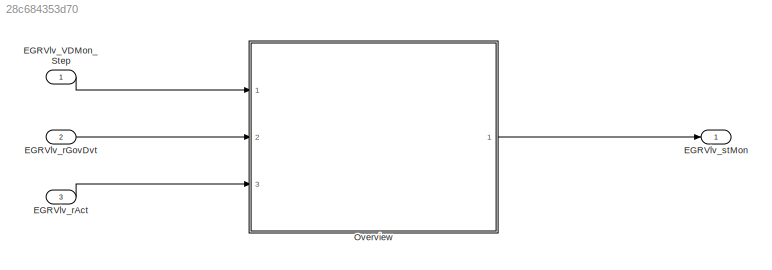
MODEL slx_28c684353d70
KIND model
CONFIG AbsTol = auto
CONFIG EnableMultiTasking = off
CONFIG FixedStep = 0.001
CONFIG MaxStep = auto
CONFIG MinStep = auto
CONFIG RelTol = 1e-3
CONFIG SampleTimeConstraint = Unconstrained
CONFIG SolverName = FixedStepDiscrete
CONFIG StartTime = 0.0
CONFIG StopTime = Inf
WORKSPACE source: mxarray member
WORKSPACE EGRVlv_VDMon_DT = 10
BLOCK [Inport] EGRVlv_VDMon_Step
  OutputFunctionCall = on
BLOCK [Inport] EGRVlv_rAct
  Description = Actuatorposition
  OutDataTypeStr = DutyCycle
  OutMax = 100
  OutMin = -100
  Port = 3
  PortDimensions = [1 1]
  Unit = %
BLOCK [Inport] EGRVlv_rGovDvt
  Description = Control deviation
  OutDataTypeStr = DutyCycle
  OutMax = 100
  OutMin = -100
  Port = 2
  PortDimensions = [1 1]
  Unit = %
BLOCK [Outport] EGRVlv_stMon
  Description = State of system monitoring
  OutDataTypeStr = State2
  OutMax = 65535
  OutMin = 0
  PortDimensions = [1 1]
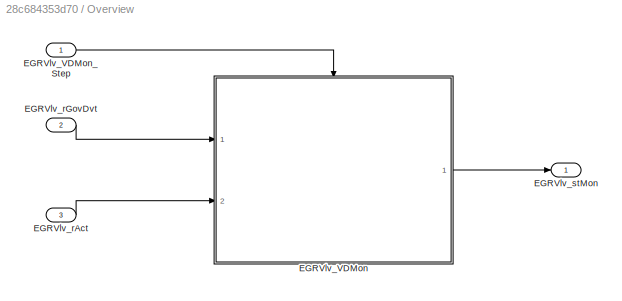
BLOCK [SubSystem] Overview
  Ports = [3, 1]
  RequestExecContextInheritance = off
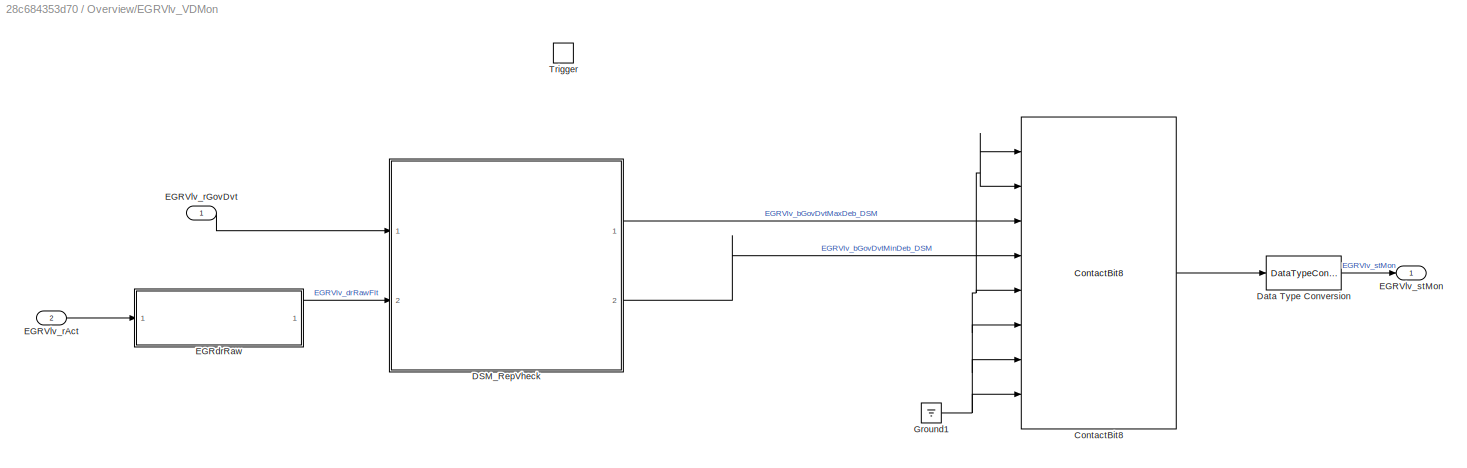
BLOCK [SubSystem] Overview/EGRVlv_VDMon
  Ports = [2, 1, 0, 1]
  RequestExecContextInheritance = off
BLOCK [Reference] Overview/EGRVlv_VDMon/ContactBit8  REF=sllib/Bit Operation/ContactBit8  (lib defined in slx_2b0aa6d284ff)
  Ports = [8, 1]
  SourceBlock = sllib/Bit Operation/ContactBit8
  SourceProductName = sllib
  SourceType = ContactBit8
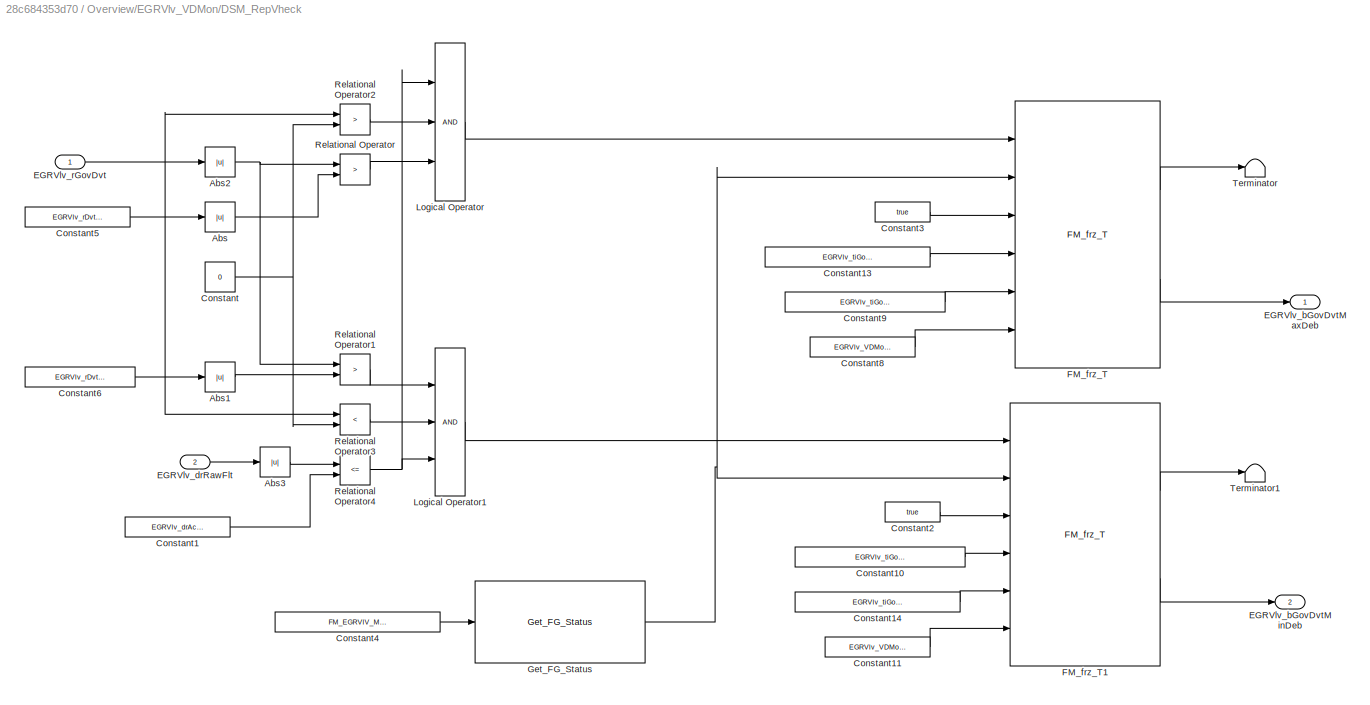
BLOCK [SubSystem] Overview/EGRVlv_VDMon/DSM_RepVheck
  Ports = [2, 2]
  RequestExecContextInheritance = off
BLOCK [Abs] Overview/EGRVlv_VDMon/DSM_RepVheck/Abs
  SaturateOnIntegerOverflow = off
BLOCK [Abs] Overview/EGRVlv_VDMon/DSM_RepVheck/Abs1
  SaturateOnIntegerOverflow = off
BLOCK [Abs] Overview/EGRVlv_VDMon/DSM_RepVheck/Abs2
  SaturateOnIntegerOverflow = off
BLOCK [Abs] Overview/EGRVlv_VDMon/DSM_RepVheck/Abs3
  SaturateOnIntegerOverflow = off
BLOCK [Constant] Overview/EGRVlv_VDMon/DSM_RepVheck/Constant
  OutDataTypeStr = Inherit: Inherit via back propagation
  Value = 0
BLOCK [Constant] Overview/EGRVlv_VDMon/DSM_RepVheck/Constant1
  SampleTime = -1
  Value = EGRVlv_drActDvt_C
BLOCK [Constant] Overview/EGRVlv_VDMon/DSM_RepVheck/Constant10
  Value = EGRVlv_tiGovDvtMinDebDef_C
BLOCK [Constant] Overview/EGRVlv_VDMon/DSM_RepVheck/Constant11
  OutDataTypeStr = Inherit: Inherit via back propagation
  Value = EGRVlv_VDMon_DT
BLOCK [Constant] Overview/EGRVlv_VDMon/DSM_RepVheck/Constant13
  Value = EGRVlv_tiGovDvtMaxDebDef_C
BLOCK [Constant] Overview/EGRVlv_VDMon/DSM_RepVheck/Constant14
  Value = EGRVlv_tiGovDvtMinDebOk_C
BLOCK [Constant] Overview/EGRVlv_VDMon/DSM_RepVheck/Constant2
  OutDataTypeStr = boolean
  Value = true
BLOCK [Constant] Overview/EGRVlv_VDMon/DSM_RepVheck/Constant3
  OutDataTypeStr = boolean
  Value = true
BLOCK [Constant] Overview/EGRVlv_VDMon/DSM_RepVheck/Constant4
  Value = FM_EGRVlV_MonEn_FG_CA
BLOCK [Constant] Overview/EGRVlv_VDMon/DSM_RepVheck/Constant5
  SampleTime = -1
  Value = EGRVlv_rDvtMax_C
BLOCK [Constant] Overview/EGRVlv_VDMon/DSM_RepVheck/Constant6
  SampleTime = -1
  Value = EGRVlv_rDvtMin_C
BLOCK [Constant] Overview/EGRVlv_VDMon/DSM_RepVheck/Constant8
  OutDataTypeStr = Inherit: Inherit via back propagation
  Value = EGRVlv_VDMon_DT
BLOCK [Constant] Overview/EGRVlv_VDMon/DSM_RepVheck/Constant9
  Value = EGRVlv_tiGovDvtMaxDebOk_C
BLOCK [Outport] Overview/EGRVlv_VDMon/DSM_RepVheck/EGRVlv_bGovDvtMaxDeb
  InitialOutput = 0
  OutputWhenDisabled = reset
  VectorParamsAs1DForOutWhenUnconnected = off
BLOCK [Outport] Overview/EGRVlv_VDMon/DSM_RepVheck/EGRVlv_bGovDvtMinDeb
  InitialOutput = 0
  OutputWhenDisabled = reset
  Port = 2
  VectorParamsAs1DForOutWhenUnconnected = off
BLOCK [Inport] Overview/EGRVlv_VDMon/DSM_RepVheck/EGRVlv_drRawFlt
  Port = 2
BLOCK [Inport] Overview/EGRVlv_VDMon/DSM_RepVheck/EGRVlv_rGovDvt
  Tag = %
BLOCK [Reference] Overview/EGRVlv_VDMon/DSM_RepVheck/FM_frz_T  REF=sllib/Fault Manager/FM_frz_T  (lib defined in slx_2b0aa6d284ff)
  Ports = [6, 2]
  SourceBlock = sllib/Fault Manager/FM_frz_T
  SourceProductName = sllib
  SourceType = FM_frz_T
BLOCK [Reference] Overview/EGRVlv_VDMon/DSM_RepVheck/FM_frz_T1  REF=sllib/Fault Manager/FM_frz_T  (lib defined in slx_2b0aa6d284ff)
  Ports = [6, 2]
  SourceBlock = sllib/Fault Manager/FM_frz_T
  SourceProductName = sllib
  SourceType = FM_frz_T
BLOCK [Reference] Overview/EGRVlv_VDMon/DSM_RepVheck/Get_FG_Status  REF=sllib/Fault Manager/Get_FG_Status  (lib defined in slx_2b0aa6d284ff)
  Ports = [1, 1]
  SourceBlock = sllib/Fault Manager/Get_FG_Status
  SourceProductName = sllib
  SourceType = Get_FG_Status
BLOCK [Logic] Overview/EGRVlv_VDMon/DSM_RepVheck/Logical Operator
  AllPortsSameDT = off
  Inputs = 3
  OutDataTypeStr = boolean
  Ports = [3, 1]
BLOCK [Logic] Overview/EGRVlv_VDMon/DSM_RepVheck/Logical Operator1
  AllPortsSameDT = off
  Inputs = 3
  OutDataTypeStr = boolean
  Ports = [3, 1]
BLOCK [RelationalOperator] Overview/EGRVlv_VDMon/DSM_RepVheck/Relational Operator
  Operator = >
  OutDataTypeStr = boolean
  Ports = [2, 1]
  RndMeth = Simplest
BLOCK [RelationalOperator] Overview/EGRVlv_VDMon/DSM_RepVheck/Relational Operator1
  InputSameDT = off
  Operator = >
  OutDataTypeStr = boolean
  Ports = [2, 1]
  RndMeth = Simplest
BLOCK [RelationalOperator] Overview/EGRVlv_VDMon/DSM_RepVheck/Relational Operator2
  Operator = >
  OutDataTypeStr = boolean
  Ports = [2, 1]
  RndMeth = Simplest
BLOCK [RelationalOperator] Overview/EGRVlv_VDMon/DSM_RepVheck/Relational Operator3
  InputSameDT = off
  Operator = <
  OutDataTypeStr = boolean
  Ports = [2, 1]
  RndMeth = Simplest
BLOCK [RelationalOperator] Overview/EGRVlv_VDMon/DSM_RepVheck/Relational Operator4
  InputSameDT = off
  Operator = <=
  OutDataTypeStr = boolean
  Ports = [2, 1]
  RndMeth = Simplest
BLOCK [Terminator] Overview/EGRVlv_VDMon/DSM_RepVheck/Terminator
BLOCK [Terminator] Overview/EGRVlv_VDMon/DSM_RepVheck/Terminator1
BLOCK [DataTypeConversion] Overview/EGRVlv_VDMon/Data Type Conversion
  RndMeth = Floor
BLOCK [Inport] Overview/EGRVlv_VDMon/EGRVlv_rAct
  Port = 2
BLOCK [Inport] Overview/EGRVlv_VDMon/EGRVlv_rGovDvt
  Tag = %
BLOCK [Outport] Overview/EGRVlv_VDMon/EGRVlv_stMon
  Tag = %
  VectorParamsAs1DForOutWhenUnconnected = off
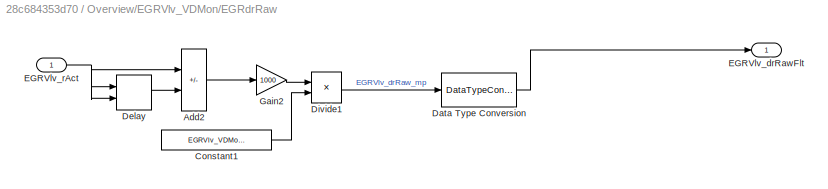
BLOCK [SubSystem] Overview/EGRVlv_VDMon/EGRdrRaw
  Ports = [1, 1]
  RequestExecContextInheritance = off
BLOCK [Sum] Overview/EGRVlv_VDMon/EGRdrRaw/Add2
  IconShape = rectangular
  Inputs = +-
  Ports = [2, 1]
  SaturateOnIntegerOverflow = on
BLOCK [Constant] Overview/EGRVlv_VDMon/EGRdrRaw/Constant1
  Value = EGRVlv_VDMon_DT
BLOCK [DataTypeConversion] Overview/EGRVlv_VDMon/EGRdrRaw/Data Type Conversion
  RndMeth = Floor
  SaturateOnIntegerOverflow = off
BLOCK [Delay] Overview/EGRVlv_VDMon/EGRdrRaw/Delay
  DelayLength = 1
  InitialCondition = 0
  InitialConditionSource = Input port
  InputPortMap = u0,p4
  Ports = [2, 1]
BLOCK [Product] Overview/EGRVlv_VDMon/EGRdrRaw/Divide1
  Inputs = */
  OutDataTypeStr = Inherit: Inherit via back propagation
  Ports = [2, 1]
BLOCK [Outport] Overview/EGRVlv_VDMon/EGRdrRaw/EGRVlv_drRawFlt
  VectorParamsAs1DForOutWhenUnconnected = off
BLOCK [Inport] Overview/EGRVlv_VDMon/EGRdrRaw/EGRVlv_rAct
BLOCK [Gain] Overview/EGRVlv_VDMon/EGRdrRaw/Gain2
  Gain = 1000
  OutDataTypeStr = fixdt(1,32,0.0001,0)
  SaturateOnIntegerOverflow = on
BLOCK [Ground] Overview/EGRVlv_VDMon/Ground1
BLOCK [TriggerPort] Overview/EGRVlv_VDMon/Trigger
  PortDimensions = 1
  Ports = []
  StatesWhenEnabling = held
  TriggerType = function-call
  VariantControl = Variant
BLOCK [Inport] Overview/EGRVlv_VDMon_Step
BLOCK [Inport] Overview/EGRVlv_rAct
  Port = 3
BLOCK [Inport] Overview/EGRVlv_rGovDvt
  Port = 2
BLOCK [Outport] Overview/EGRVlv_stMon
  VectorParamsAs1DForOutWhenUnconnected = off
LINE EGRVlv_VDMon_Step:1 -> Overview:1
LINE EGRVlv_rAct:1 -> Overview:3
LINE EGRVlv_rGovDvt:1 -> Overview:2
LINE Overview/EGRVlv_VDMon/ContactBit8:1 -> Overview/EGRVlv_VDMon/Data Type Conversion:1
LINE Overview/EGRVlv_VDMon/DSM_RepVheck/Abs1:1 -> Overview/EGRVlv_VDMon/DSM_RepVheck/Relational Operator1:2
NET Overview/EGRVlv_VDMon/DSM_RepVheck/Abs2:1 -> Overview/EGRVlv_VDMon/DSM_RepVheck/Relational Operator1:1, Overview/EGRVlv_VDMon/DSM_RepVheck/Relational Operator:1
LINE Overview/EGRVlv_VDMon/DSM_RepVheck/Abs3:1 -> Overview/EGRVlv_VDMon/DSM_RepVheck/Relational Operator4:1
LINE Overview/EGRVlv_VDMon/DSM_RepVheck/Abs:1 -> Overview/EGRVlv_VDMon/DSM_RepVheck/Relational Operator:2
LINE Overview/EGRVlv_VDMon/DSM_RepVheck/Constant10:1 -> Overview/EGRVlv_VDMon/DSM_RepVheck/FM_frz_T1:4
LINE Overview/EGRVlv_VDMon/DSM_RepVheck/Constant11:1 -> Overview/EGRVlv_VDMon/DSM_RepVheck/FM_frz_T1:6
LINE Overview/EGRVlv_VDMon/DSM_RepVheck/Constant13:1 -> Overview/EGRVlv_VDMon/DSM_RepVheck/FM_frz_T:4
LINE Overview/EGRVlv_VDMon/DSM_RepVheck/Constant14:1 -> Overview/EGRVlv_VDMon/DSM_RepVheck/FM_frz_T1:5
LINE Overview/EGRVlv_VDMon/DSM_RepVheck/Constant1:1 -> Overview/EGRVlv_VDMon/DSM_RepVheck/Relational Operator4:2
LINE Overview/EGRVlv_VDMon/DSM_RepVheck/Constant2:1 -> Overview/EGRVlv_VDMon/DSM_RepVheck/FM_frz_T1:3
LINE Overview/EGRVlv_VDMon/DSM_RepVheck/Constant3:1 -> Overview/EGRVlv_VDMon/DSM_RepVheck/FM_frz_T:3
LINE Overview/EGRVlv_VDMon/DSM_RepVheck/Constant4:1 -> Overview/EGRVlv_VDMon/DSM_RepVheck/Get_FG_Status:1
LINE Overview/EGRVlv_VDMon/DSM_RepVheck/Constant5:1 -> Overview/EGRVlv_VDMon/DSM_RepVheck/Abs:1
LINE Overview/EGRVlv_VDMon/DSM_RepVheck/Constant6:1 -> Overview/EGRVlv_VDMon/DSM_RepVheck/Abs1:1
LINE Overview/EGRVlv_VDMon/DSM_RepVheck/Constant8:1 -> Overview/EGRVlv_VDMon/DSM_RepVheck/FM_frz_T:6
LINE Overview/EGRVlv_VDMon/DSM_RepVheck/Constant9:1 -> Overview/EGRVlv_VDMon/DSM_RepVheck/FM_frz_T:5
NET Overview/EGRVlv_VDMon/DSM_RepVheck/Constant:1 -> Overview/EGRVlv_VDMon/DSM_RepVheck/Relational Operator2:2, Overview/EGRVlv_VDMon/DSM_RepVheck/Relational Operator3:2
LINE Overview/EGRVlv_VDMon/DSM_RepVheck/EGRVlv_drRawFlt:1 -> Overview/EGRVlv_VDMon/DSM_RepVheck/Abs3:1
NET Overview/EGRVlv_VDMon/DSM_RepVheck/EGRVlv_rGovDvt:1 -> Overview/EGRVlv_VDMon/DSM_RepVheck/Abs2:1, Overview/EGRVlv_VDMon/DSM_RepVheck/Relational Operator2:1, Overview/EGRVlv_VDMon/DSM_RepVheck/Relational Operator3:1
LINE Overview/EGRVlv_VDMon/DSM_RepVheck/FM_frz_T1:1 -> Overview/EGRVlv_VDMon/DSM_RepVheck/Terminator1:1
LINE Overview/EGRVlv_VDMon/DSM_RepVheck/FM_frz_T1:2 -> Overview/EGRVlv_VDMon/DSM_RepVheck/EGRVlv_bGovDvtMinDeb:1
LINE Overview/EGRVlv_VDMon/DSM_RepVheck/FM_frz_T:1 -> Overview/EGRVlv_VDMon/DSM_RepVheck/Terminator:1
LINE Overview/EGRVlv_VDMon/DSM_RepVheck/FM_frz_T:2 -> Overview/EGRVlv_VDMon/DSM_RepVheck/EGRVlv_bGovDvtMaxDeb:1
NET Overview/EGRVlv_VDMon/DSM_RepVheck/Get_FG_Status:1 -> Overview/EGRVlv_VDMon/DSM_RepVheck/FM_frz_T1:2, Overview/EGRVlv_VDMon/DSM_RepVheck/FM_frz_T:2
LINE Overview/EGRVlv_VDMon/DSM_RepVheck/Logical Operator1:1 -> Overview/EGRVlv_VDMon/DSM_RepVheck/FM_frz_T1:1
LINE Overview/EGRVlv_VDMon/DSM_RepVheck/Logical Operator:1 -> Overview/EGRVlv_VDMon/DSM_RepVheck/FM_frz_T:1
LINE Overview/EGRVlv_VDMon/DSM_RepVheck/Relational Operator1:1 -> Overview/EGRVlv_VDMon/DSM_RepVheck/Logical Operator1:1
LINE Overview/EGRVlv_VDMon/DSM_RepVheck/Relational Operator2:1 -> Overview/EGRVlv_VDMon/DSM_RepVheck/Logical Operator:2
LINE Overview/EGRVlv_VDMon/DSM_RepVheck/Relational Operator3:1 -> Overview/EGRVlv_VDMon/DSM_RepVheck/Logical Operator1:2
NET Overview/EGRVlv_VDMon/DSM_RepVheck/Relational Operator4:1 -> Overview/EGRVlv_VDMon/DSM_RepVheck/Logical Operator1:3, Overview/EGRVlv_VDMon/DSM_RepVheck/Logical Operator:1
LINE Overview/EGRVlv_VDMon/DSM_RepVheck/Relational Operator:1 -> Overview/EGRVlv_VDMon/DSM_RepVheck/Logical Operator:3
LINE Overview/EGRVlv_VDMon/DSM_RepVheck:1 -> Overview/EGRVlv_VDMon/ContactBit8:3
LINE Overview/EGRVlv_VDMon/DSM_RepVheck:2 -> Overview/EGRVlv_VDMon/ContactBit8:4
LINE Overview/EGRVlv_VDMon/Data Type Conversion:1 -> Overview/EGRVlv_VDMon/EGRVlv_stMon:1
LINE Overview/EGRVlv_VDMon/EGRVlv_rAct:1 -> Overview/EGRVlv_VDMon/EGRdrRaw:1
LINE Overview/EGRVlv_VDMon/EGRVlv_rGovDvt:1 -> Overview/EGRVlv_VDMon/DSM_RepVheck:1
LINE Overview/EGRVlv_VDMon/EGRdrRaw/Add2:1 -> Overview/EGRVlv_VDMon/EGRdrRaw/Gain2:1
LINE Overview/EGRVlv_VDMon/EGRdrRaw/Constant1:1 -> Overview/EGRVlv_VDMon/EGRdrRaw/Divide1:2
LINE Overview/EGRVlv_VDMon/EGRdrRaw/Data Type Conversion:1 -> Overview/EGRVlv_VDMon/EGRdrRaw/EGRVlv_drRawFlt:1
LINE Overview/EGRVlv_VDMon/EGRdrRaw/Delay:1 -> Overview/EGRVlv_VDMon/EGRdrRaw/Add2:2
LINE Overview/EGRVlv_VDMon/EGRdrRaw/Divide1:1 -> Overview/EGRVlv_VDMon/EGRdrRaw/Data Type Conversion:1
NET Overview/EGRVlv_VDMon/EGRdrRaw/EGRVlv_rAct:1 -> Overview/EGRVlv_VDMon/EGRdrRaw/Add2:1, Overview/EGRVlv_VDMon/EGRdrRaw/Delay:1, Overview/EGRVlv_VDMon/EGRdrRaw/Delay:2
LINE Overview/EGRVlv_VDMon/EGRdrRaw/Gain2:1 -> Overview/EGRVlv_VDMon/EGRdrRaw/Divide1:1
LINE Overview/EGRVlv_VDMon/EGRdrRaw:1 -> Overview/EGRVlv_VDMon/DSM_RepVheck:2
NET Overview/EGRVlv_VDMon/Ground1:1 -> Overview/EGRVlv_VDMon/ContactBit8:1, Overview/EGRVlv_VDMon/ContactBit8:2, Overview/EGRVlv_VDMon/ContactBit8:5, Overview/EGRVlv_VDMon/ContactBit8:6, Overview/EGRVlv_VDMon/ContactBit8:7, Overview/EGRVlv_VDMon/ContactBit8:8
LINE Overview/EGRVlv_VDMon:1 -> Overview/EGRVlv_stMon:1
LINE Overview/EGRVlv_VDMon_Step:1 -> Overview/EGRVlv_VDMon:trigger
LINE Overview/EGRVlv_rAct:1 -> Overview/EGRVlv_VDMon:2
LINE Overview/EGRVlv_rGovDvt:1 -> Overview/EGRVlv_VDMon:1
LINE Overview:1 -> EGRVlv_stMon:1
note: NET lines group one-source signal fan-out (src -> all destinations, sorted); 1:1 wires keep LINE
